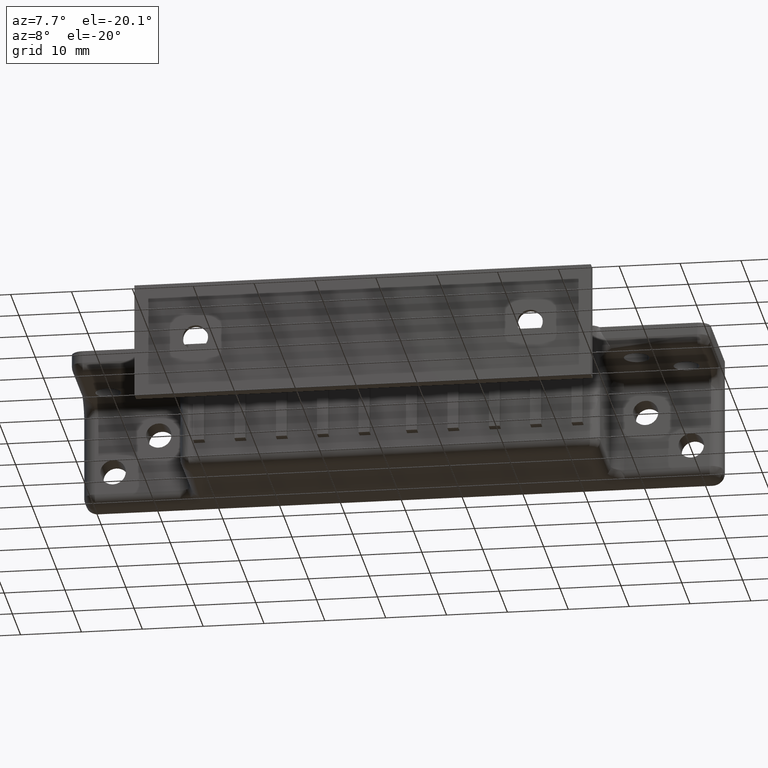
[diagram: clean part render]
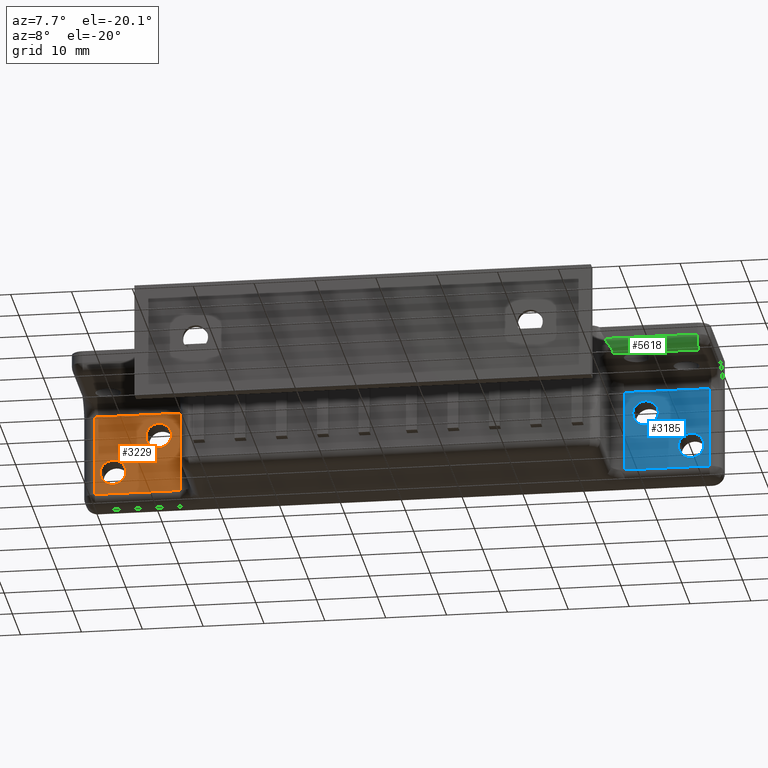
[diagram: same view with three faces highlighted in distinct colors, each labeled with its STEP entity id]
A machine part, auxiliary view with three faces highlighted in distinct colors.
Their STEP definitions:

[orange] entity #3229 — the highlighted face is a freeform B-spline surface patch.
#782=CARTESIAN_POINT('',(-45.400000000000013,-3.999999999999895,-5.000000056137732));
#783=VERTEX_POINT('',#782);
#784=CARTESIAN_POINT('',(-45.927192888655163,-3.999999999999601,-3.608498030159591));
#785=VERTEX_POINT('',#784);
#786=CARTESIAN_POINT('',(-45.400000000000013,-3.999999999999895,-5.000000056137732));
#787=CARTESIAN_POINT('',(-45.399554015009372,-3.999999999999836,-4.698870299670682));
#788=CARTESIAN_POINT('',(-45.511041634825993,-3.999999999999715,-4.192294069814452));
#789=CARTESIAN_POINT('',(-45.790654336704378,-3.999999999999643,-3.762719706654812));
#790=CARTESIAN_POINT('',(-45.927192888655163,-3.999999999999601,-3.608498030159591));
#791=B_SPLINE_CURVE_WITH_KNOTS('',3,(#786,#787,#788,#789,#790),.UNSPECIFIED.,.F.,.U.,(4,1,4),(0.000000047316011,0.903135405796648,1.521086794671027),.UNSPECIFIED.);
#792=EDGE_CURVE('',#783,#785,#791,.T.);
#835=CARTESIAN_POINT('',(-49.072807111344837,-3.999999999999601,-6.391501969757768));
#836=VERTEX_POINT('',#835);
#842=CARTESIAN_POINT('',(-47.500000000000000,-3.999999999999895,-7.099999999958679));
#843=VERTEX_POINT('',#842);
#844=CARTESIAN_POINT('',(-49.072807111344837,-3.999999999999601,-6.391501969757768));
#845=CARTESIAN_POINT('',(-48.888961545182759,-3.999999999999643,-6.599796544172691));
#846=CARTESIAN_POINT('',(-48.572580421874768,-3.999999999999689,-6.838721687287753));
#847=CARTESIAN_POINT('',(-48.018419081385602,-3.999999999999801,-7.053817166919189));
#848=CARTESIAN_POINT('',(-47.703699936760792,-3.999999999999857,-7.100082834436542));
#849=CARTESIAN_POINT('',(-47.500000000000000,-3.999999999999895,-7.099999999958679));
#850=B_SPLINE_CURVE_WITH_KNOTS('',3,(#844,#845,#846,#847,#848,#849),.UNSPECIFIED.,.F.,.U.,(4,1,1,4),(0.000000053171088,0.833292452879776,1.166587016798466,1.777669814291842),.UNSPECIFIED.);
#851=EDGE_CURVE('',#836,#843,#850,.T.);
#853=CARTESIAN_POINT('',(-47.500000000000000,-3.999999999999895,-7.099999999958679));
#854=CARTESIAN_POINT('',(-47.225084974774710,-3.999999999999893,-7.100274448361832));
#855=CARTESIAN_POINT('',(-46.727001550256723,-3.999999999999893,-7.000768992620934));
#856=CARTESIAN_POINT('',(-46.134536210673431,-3.999999999999904,-6.635569629672772));
#857=CARTESIAN_POINT('',(-45.709523724380468,-3.999999999999886,-6.155016870116034));
#858=CARTESIAN_POINT('',(-45.455971939371167,-3.999999999999908,-5.601325243068589));
#859=CARTESIAN_POINT('',(-45.399954099206582,-3.999999999999870,-5.188986243046675));
#860=CARTESIAN_POINT('',(-45.400000000000013,-3.999999999999895,-5.000000056137732));
#861=B_SPLINE_CURVE_WITH_KNOTS('',3,(#853,#854,#855,#856,#857,#858,#859,#860),.UNSPECIFIED.,.F.,.U.,(4,1,1,1,1,4),(0.000000181138403,0.824690623533419,1.494784162827745,2.061698216374982,2.731782773978693,3.298755031449686),.UNSPECIFIED.);
#862=EDGE_CURVE('',#843,#783,#861,.T.);
#885=CARTESIAN_POINT('',(-47.500000000000000,-3.999999999999895,-2.899999999958680));
#886=VERTEX_POINT('',#885);
#887=CARTESIAN_POINT('',(-45.927192888655163,-3.999999999999601,-3.608498030159591));
#888=CARTESIAN_POINT('',(-46.037593609527420,-3.999999999999623,-3.483655693986616));
#889=CARTESIAN_POINT('',(-46.274407352123603,-3.999999999999665,-3.272908937221512));
#890=CARTESIAN_POINT('',(-46.796562052147152,-3.999999999999761,-2.985786505767793));
#891=CARTESIAN_POINT('',(-47.222182961258333,-3.999999999999843,-2.899675884934878));
#892=CARTESIAN_POINT('',(-47.500000000000000,-3.999999999999895,-2.899999999958680));
#893=B_SPLINE_CURVE_WITH_KNOTS('',3,(#887,#888,#889,#890,#891,#892),.UNSPECIFIED.,.F.,.U.,(4,1,1,4),(0.000000053172585,0.499970711671737,0.944377414584489,1.777669814291842),.UNSPECIFIED.);
#894=EDGE_CURVE('',#785,#886,#893,.T.);
#896=CARTESIAN_POINT('',(-49.600000000000009,-3.999999999999895,-4.999999943779620));
#897=VERTEX_POINT('',#896);
#898=CARTESIAN_POINT('',(-47.500000000000000,-3.999999999999895,-2.899999999958680));
#899=CARTESIAN_POINT('',(-47.723363547043768,-3.999999999999895,-2.899889480158138));
#900=CARTESIAN_POINT('',(-48.066890773648673,-3.999999999999901,-2.955345869023069));
#901=CARTESIAN_POINT('',(-48.526529187907720,-3.999999999999897,-3.152422927920235));
#902=CARTESIAN_POINT('',(-48.911394445788041,-3.999999999999866,-3.416419601125118));
#903=CARTESIAN_POINT('',(-49.267455108142428,-3.999999999999925,-3.819025379851884));
#904=CARTESIAN_POINT('',(-49.533577360458757,-3.999999999999909,-4.364391221345167));
#905=CARTESIAN_POINT('',(-49.600126413254138,-3.999999999999880,-4.776637098725781));
#906=CARTESIAN_POINT('',(-49.600000000000009,-3.999999999999895,-4.999999943779620));
#907=B_SPLINE_CURVE_WITH_KNOTS('',3,(#898,#899,#900,#901,#902,#903,#904,#905,#906),.UNSPECIFIED.,.F.,.U.,(4,1,1,1,1,1,4),(0.000000181137159,0.670056274260765,1.030865980929571,1.494784162827211,2.061698216374646,2.628704581179784,3.298755031449605),.UNSPECIFIED.);
#908=EDGE_CURVE('',#886,#897,#907,.T.);
#910=CARTESIAN_POINT('',(-49.600000000000009,-3.999999999999895,-4.999999943779620));
#911=CARTESIAN_POINT('',(-49.600075927262161,-3.999999999999855,-5.205980713609296));
#912=CARTESIAN_POINT('',(-49.524829175136432,-3.999999999999734,-5.712979807977589));
#913=CARTESIAN_POINT('',(-49.272689918193237,-3.999999999999658,-6.166273092626057));
#914=CARTESIAN_POINT('',(-49.072807111344837,-3.999999999999601,-6.391501969757768));
#915=B_SPLINE_CURVE_WITH_KNOTS('',3,(#910,#911,#912,#913,#914),.UNSPECIFIED.,.F.,.U.,(4,1,4),(0.000000047316089,0.617951436193237,1.521086794671041),.UNSPECIFIED.);
#916=EDGE_CURVE('',#897,#836,#915,.T.);
#974=CARTESIAN_POINT('',(-37.900000000000013,-3.999999999999895,0.999999943862273));
#975=VERTEX_POINT('',#974);
#976=CARTESIAN_POINT('',(-38.427192888655163,-3.999999999999601,2.391501969840413));
#977=VERTEX_POINT('',#976);
#978=CARTESIAN_POINT('',(-37.900000000000013,-3.999999999999895,0.999999943862273));
#979=CARTESIAN_POINT('',(-37.899852959080803,-3.999999999999857,1.237688144291076));
#980=CARTESIAN_POINT('',(-37.987030437386018,-3.999999999999713,1.744582385124396));
#981=CARTESIAN_POINT('',(-38.248483804007762,-3.999999999999657,2.189926416583971));
#982=CARTESIAN_POINT('',(-38.427192888655163,-3.999999999999601,2.391501969840413));
#983=B_SPLINE_CURVE_WITH_KNOTS('',3,(#978,#979,#980,#981,#982),.UNSPECIFIED.,.F.,.U.,(4,1,4),(0.000000047316203,0.713023929276209,1.521086794671025),.UNSPECIFIED.);
#984=EDGE_CURVE('',#975,#977,#983,.T.);
#1029=CARTESIAN_POINT('',(-41.572807111344837,-3.999999999999601,-0.391501969757764));
#1030=VERTEX_POINT('',#1029);
#1036=CARTESIAN_POINT('',(-40.0,-3.999999999999895,-1.099999999958676));
#1037=VERTEX_POINT('',#1036);
#1038=CARTESIAN_POINT('',(-41.572807111344837,-3.999999999999601,-0.391501969757764));
#1039=CARTESIAN_POINT('',(-41.388961898552687,-3.999999999999636,-0.599788875593447));
#1040=CARTESIAN_POINT('',(-41.042446050334533,-3.999999999999707,-0.861504251690805));
#1041=CARTESIAN_POINT('',(-40.481411079647977,-3.999999999999801,-1.062316386851195));
#1042=CARTESIAN_POINT('',(-40.166657030213237,-3.999999999999872,-1.100040475445964));
#1043=CARTESIAN_POINT('',(-40.0,-3.999999999999895,-1.099999999958676));
#1044=B_SPLINE_CURVE_WITH_KNOTS('',3,(#1038,#1039,#1040,#1041,#1042,#1043),.UNSPECIFIED.,.F.,.U.,(4,1,1,4),(0.000000053172877,0.833292452880401,1.277699155790871,1.777669814291842),.UNSPECIFIED.);
#1045=EDGE_CURVE('',#1030,#1037,#1044,.T.);
#1047=CARTESIAN_POINT('',(-40.0,-3.999999999999895,-1.099999999958676));
#1048=CARTESIAN_POINT('',(-39.759448854636538,-3.999999999999897,-1.100154484132080));
#1049=CARTESIAN_POINT('',(-39.364413318616641,-3.999999999999899,-1.031341710723601));
#1050=CARTESIAN_POINT('',(-38.805152649942890,-3.999999999999891,-0.758391059061153));
#1051=CARTESIAN_POINT('',(-38.401050069262112,-3.999999999999897,-0.401158621784563));
#1052=CARTESIAN_POINT('',(-38.118362279962732,-3.999999999999901,0.033623499598106));
#1053=CARTESIAN_POINT('',(-37.944376102769873,-3.999999999999896,0.484608276528699));
#1054=CARTESIAN_POINT('',(-37.899936007373327,-3.999999999999897,0.811007954297067));
#1055=CARTESIAN_POINT('',(-37.900000000000013,-3.999999999999895,0.999999943862273));
#1056=B_SPLINE_CURVE_WITH_KNOTS('',3,(#1047,#1048,#1049,#1050,#1051,#1052,#1053,#1054,#1055),.UNSPECIFIED.,.F.,.U.,(4,1,1,1,1,1,4),(0.000000181141028,0.721603617523578,1.185510774206833,1.855520375933963,2.319428157187720,2.731782773979452,3.298755031449599),.UNSPECIFIED.);
#1057=EDGE_CURVE('',#1037,#975,#1056,.T.);
#1080=CARTESIAN_POINT('',(-40.0,-3.999999999999895,3.100000000041324));
#1081=VERTEX_POINT('',#1080);
#1082=CARTESIAN_POINT('',(-38.427192888655163,-3.999999999999601,2.391501969840413));
#1083=CARTESIAN_POINT('',(-38.537593623293652,-3.999999999999607,2.516344361526416));
#1084=CARTESIAN_POINT('',(-38.774407225274942,-3.999999999999684,2.727090997562583));
#1085=CARTESIAN_POINT('',(-39.296562347973300,-3.999999999999757,3.014213465888780));
#1086=CARTESIAN_POINT('',(-39.722182636775798,-3.999999999999844,3.100324181202301));
#1087=CARTESIAN_POINT('',(-40.0,-3.999999999999895,3.100000000041324));
#1088=B_SPLINE_CURVE_WITH_KNOTS('',3,(#1082,#1083,#1084,#1085,#1086,#1087),.UNSPECIFIED.,.F.,.U.,(4,1,1,4),(0.000000053172594,0.499970711671741,0.944377414584484,1.777669814291842),.UNSPECIFIED.);
#1089=EDGE_CURVE('',#977,#1081,#1088,.T.);
#1091=CARTESIAN_POINT('',(-42.100000000000001,-3.999999999999895,1.000000056220385));
#1092=VERTEX_POINT('',#1091);
#1093=CARTESIAN_POINT('',(-40.0,-3.999999999999895,3.100000000041324));
#1094=CARTESIAN_POINT('',(-40.309328375430063,-3.999999999999889,3.100432620259229));
#1095=CARTESIAN_POINT('',(-40.807184487013927,-3.999999999999916,2.987918592913792));
#1096=CARTESIAN_POINT('',(-41.330260158202940,-3.999999999999875,2.647340985195380));
#1097=CARTESIAN_POINT('',(-41.679536051725051,-3.999999999999903,2.289453232614917));
#1098=CARTESIAN_POINT('',(-41.997924028854712,-3.999999999999886,1.772867848066403));
#1099=CARTESIAN_POINT('',(-42.100394817058877,-3.999999999999898,1.292142221916823));
#1100=CARTESIAN_POINT('',(-42.100000000000001,-3.999999999999895,1.000000056220385));
#1101=B_SPLINE_CURVE_WITH_KNOTS('',3,(#1093,#1094,#1095,#1096,#1097,#1098,#1099,#1100),.UNSPECIFIED.,.F.,.U.,(4,1,1,1,1,4),(0.000000181137360,0.927781601232995,1.494784162827209,1.855520375931953,2.422521843111042,3.298755031449600),.UNSPECIFIED.);
#1102=EDGE_CURVE('',#1081,#1092,#1101,.T.);
#1104=CARTESIAN_POINT('',(-42.100000000000001,-3.999999999999895,1.000000056220385));
#1105=CARTESIAN_POINT('',(-42.100449167360857,-3.999999999999838,0.698869633092733));
#1106=CARTESIAN_POINT('',(-41.988951196694238,-3.999999999999716,0.192296098438409));
#1107=CARTESIAN_POINT('',(-41.709349619100379,-3.999999999999641,-0.237281351083020));
#1108=CARTESIAN_POINT('',(-41.572807111344837,-3.999999999999601,-0.391501969757764));
#1109=B_SPLINE_CURVE_WITH_KNOTS('',3,(#1104,#1105,#1106,#1107,#1108),.UNSPECIFIED.,.F.,.U.,(4,1,4),(0.000000047315879,0.903135405796669,1.521086794671053),.UNSPECIFIED.);
#1110=EDGE_CURVE('',#1092,#1030,#1109,.T.);
#2958=CARTESIAN_POINT('',(-36.500000000000000,-3.999999999999915,4.700000000041200));
#2959=VERTEX_POINT('',#2958);
#2960=CARTESIAN_POINT('',(-50.500000000325201,-3.999999999999915,4.700000000041200));
#2961=VERTEX_POINT('',#2960);
#2962=CARTESIAN_POINT('',(-36.500000000000000,-3.999999999999915,4.700000000041200));
#2963=CARTESIAN_POINT('',(-50.500000000325201,-3.999999999999915,4.700000000041200));
#2964=QUASI_UNIFORM_CURVE('',1,(#2962,#2963),.UNSPECIFIED.,.F.,.U.);
#2965=EDGE_CURVE('',#2959,#2961,#2964,.T.);
#3186=CARTESIAN_POINT('',(-51.199299973206728,-3.999999999999915,-9.369329973986979));
#3187=CARTESIAN_POINT('',(-35.800699651609207,-3.999999999999915,-9.369329973986979));
#3188=CARTESIAN_POINT('',(-51.199299973206728,-3.999999999999915,5.369330333485405));
#3189=CARTESIAN_POINT('',(-35.800699651609207,-3.999999999999915,5.369330333485405));
#3190=B_SPLINE_SURFACE_WITH_KNOTS('',1,1,((#3186,#3188),(#3187,#3189)),.UNSPECIFIED.,.F.,.F.,.U.,(2,2),(2,2),(0.0,15.398600321597520),(0.0,14.738660307472379),.UNSPECIFIED.);
#3191=ORIENTED_EDGE('',*,*,#2965,.T.);
#3192=CARTESIAN_POINT('',(-50.500000000324803,-3.999999999999915,-8.699999999958781));
#3193=VERTEX_POINT('',#3192);
#3194=CARTESIAN_POINT('',(-50.500000000325201,-3.999999999999915,4.700000000041200));
#3195=CARTESIAN_POINT('',(-50.500000000324803,-3.999999999999915,-8.699999999958781));
#3196=QUASI_UNIFORM_CURVE('',1,(#3194,#3195),.UNSPECIFIED.,.F.,.U.);
#3197=EDGE_CURVE('',#2961,#3193,#3196,.T.);
#3198=ORIENTED_EDGE('',*,*,#3197,.T.);
#3199=CARTESIAN_POINT('',(-36.500000000000000,-3.999999999999915,-8.699999999958781));
#3200=VERTEX_POINT('',#3199);
#3201=CARTESIAN_POINT('',(-50.500000000324803,-3.999999999999915,-8.699999999958781));
#3202=CARTESIAN_POINT('',(-36.500000000000000,-3.999999999999915,-8.699999999958781));
#3203=QUASI_UNIFORM_CURVE('',1,(#3201,#3202),.UNSPECIFIED.,.F.,.U.);
#3204=EDGE_CURVE('',#3193,#3200,#3203,.T.);
#3205=ORIENTED_EDGE('',*,*,#3204,.T.);
#3206=CARTESIAN_POINT('',(-36.500000000000000,-3.999999999999915,-8.699999999958781));
#3207=CARTESIAN_POINT('',(-36.500000000000000,-3.999999999999915,4.700000000041200));
#3208=QUASI_UNIFORM_CURVE('',1,(#3206,#3207),.UNSPECIFIED.,.F.,.U.);
#3209=EDGE_CURVE('',#3200,#2959,#3208,.T.);
#3210=ORIENTED_EDGE('',*,*,#3209,.T.);
#3211=EDGE_LOOP('',(#3191,#3198,#3205,#3210));
#3212=FACE_OUTER_BOUND('',#3211,.T.);
#3213=ORIENTED_EDGE('',*,*,#1102,.F.);
#3214=ORIENTED_EDGE('',*,*,#1089,.F.);
#3215=ORIENTED_EDGE('',*,*,#984,.F.);
#3216=ORIENTED_EDGE('',*,*,#1057,.F.);
#3217=ORIENTED_EDGE('',*,*,#1045,.F.);
#3218=ORIENTED_EDGE('',*,*,#1110,.F.);
#3219=EDGE_LOOP('',(#3213,#3214,#3215,#3216,#3217,#3218));
#3220=FACE_BOUND('',#3219,.T.);
#3221=ORIENTED_EDGE('',*,*,#908,.F.);
#3222=ORIENTED_EDGE('',*,*,#894,.F.);
#3223=ORIENTED_EDGE('',*,*,#792,.F.);
#3224=ORIENTED_EDGE('',*,*,#862,.F.);
#3225=ORIENTED_EDGE('',*,*,#851,.F.);
#3226=ORIENTED_EDGE('',*,*,#916,.F.);
#3227=EDGE_LOOP('',(#3221,#3222,#3223,#3224,#3225,#3226));
#3228=FACE_BOUND('',#3227,.T.);
#3229=ADVANCED_FACE('',(#3212,#3220,#3228),#3190,.T.);

[blue] entity #3185 — the highlighted face is a freeform B-spline surface patch.
#1167=CARTESIAN_POINT('',(42.100000000000001,-3.999999999999895,0.999999943862272));
#1168=VERTEX_POINT('',#1167);
#1169=CARTESIAN_POINT('',(41.572807111344837,-3.999999999999601,2.391501969840413));
#1170=VERTEX_POINT('',#1169);
#1171=CARTESIAN_POINT('',(42.100000000000001,-3.999999999999895,0.999999943862272));
#1172=CARTESIAN_POINT('',(42.100459129347250,-3.999999999999836,1.301131636916525));
#1173=CARTESIAN_POINT('',(41.988945362593270,-3.999999999999724,1.807702217579748));
#1174=CARTESIAN_POINT('',(41.709350094343982,-3.999999999999634,2.237282253103238));
#1175=CARTESIAN_POINT('',(41.572807111344837,-3.999999999999601,2.391501969840413));
#1176=B_SPLINE_CURVE_WITH_KNOTS('',3,(#1171,#1172,#1173,#1174,#1175),.UNSPECIFIED.,.F.,.U.,(4,1,4),(0.000000047315838,0.903135405796685,1.521086794671031),.UNSPECIFIED.);
#1177=EDGE_CURVE('',#1168,#1170,#1176,.T.);
#1221=CARTESIAN_POINT('',(38.427192888655163,-3.999999999999601,-0.391501969757762));
#1222=VERTEX_POINT('',#1221);
#1228=CARTESIAN_POINT('',(40.0,-3.999999999999895,-1.099999999958676));
#1229=VERTEX_POINT('',#1228);
#1230=CARTESIAN_POINT('',(38.427192888655163,-3.999999999999601,-0.391501969757762));
#1231=CARTESIAN_POINT('',(38.537595094610850,-3.999999999999623,-0.516345832261079));
#1232=CARTESIAN_POINT('',(38.774406779413972,-3.999999999999665,-0.727089874325309));
#1233=CARTESIAN_POINT('',(39.296561994707801,-3.999999999999765,-1.014214313266866));
#1234=CARTESIAN_POINT('',(39.722183607535719,-3.999999999999836,-1.100323738710818));
#1235=CARTESIAN_POINT('',(40.0,-3.999999999999895,-1.099999999958676));
#1236=B_SPLINE_CURVE_WITH_KNOTS('',3,(#1230,#1231,#1232,#1233,#1234,#1235),.UNSPECIFIED.,.F.,.U.,(4,1,1,4),(0.000000053171422,0.499970711671231,0.944377414584374,1.777669814291843),.UNSPECIFIED.);
#1237=EDGE_CURVE('',#1222,#1229,#1236,.T.);
#1239=CARTESIAN_POINT('',(40.0,-3.999999999999895,-1.099999999958676));
#1240=CARTESIAN_POINT('',(40.274918207606277,-3.999999999999896,-1.100278282616277));
#1241=CARTESIAN_POINT('',(40.772990420738857,-3.999999999999896,-1.000758615283857));
#1242=CARTESIAN_POINT('',(41.335848139192017,-3.999999999999890,-0.653833688318817));
#1243=CARTESIAN_POINT('',(41.747639627876282,-3.999999999999895,-0.210541978678698));
#1244=CARTESIAN_POINT('',(42.028116577949291,-3.999999999999910,0.329988520288701));
#1245=CARTESIAN_POINT('',(42.100099246197587,-3.999999999999882,0.776649368072438));
#1246=CARTESIAN_POINT('',(42.100000000000001,-3.999999999999895,0.999999943862272));
#1247=B_SPLINE_CURVE_WITH_KNOTS('',3,(#1239,#1240,#1241,#1242,#1243,#1244,#1245,#1246),.UNSPECIFIED.,.F.,.U.,(4,1,1,1,1,4),(0.000000181138356,0.824690623533324,1.494784162827602,1.958628687313999,2.628704581179898,3.298755031449604),.UNSPECIFIED.);
#1248=EDGE_CURVE('',#1229,#1168,#1247,.T.);
#1271=CARTESIAN_POINT('',(40.0,-3.999999999999895,3.100000000041324));
#1272=VERTEX_POINT('',#1271);
#1273=CARTESIAN_POINT('',(41.572807111344837,-3.999999999999601,2.391501969840413));
#1274=CARTESIAN_POINT('',(41.462406325873808,-3.999999999999625,2.516344428163845));
#1275=CARTESIAN_POINT('',(41.225592793979338,-3.999999999999660,2.727090696463732));
#1276=CARTESIAN_POINT('',(40.703437815271542,-3.999999999999777,3.014214126249236));
#1277=CARTESIAN_POINT('',(40.277817207156417,-3.999999999999830,3.100323223649369));
#1278=CARTESIAN_POINT('',(40.0,-3.999999999999895,3.100000000041324));
#1279=B_SPLINE_CURVE_WITH_KNOTS('',3,(#1273,#1274,#1275,#1276,#1277,#1278),.UNSPECIFIED.,.F.,.U.,(4,1,1,4),(0.000000053170120,0.499970711670288,0.944377414583833,1.777669814291843),.UNSPECIFIED.);
#1280=EDGE_CURVE('',#1170,#1272,#1279,.T.);
#1282=CARTESIAN_POINT('',(37.900000000000013,-3.999999999999895,1.000000056220386));
#1283=VERTEX_POINT('',#1282);
#1284=CARTESIAN_POINT('',(40.0,-3.999999999999895,3.100000000041324));
#1285=CARTESIAN_POINT('',(39.776641795861650,-3.999999999999894,3.100098387464835));
#1286=CARTESIAN_POINT('',(39.347209813635452,-3.999999999999897,3.030839744241810));
#1287=CARTESIAN_POINT('',(38.726553408444971,-3.999999999999899,2.718603194615349));
#1288=CARTESIAN_POINT('',(38.287306776330993,-3.999999999999890,2.268405644550327));
#1289=CARTESIAN_POINT('',(37.976920329199842,-3.999999999999916,1.669892711656847));
#1290=CARTESIAN_POINT('',(37.899770786411047,-3.999999999999877,1.257744807651406));
#1291=CARTESIAN_POINT('',(37.900000000000013,-3.999999999999895,1.000000056220386));
#1292=B_SPLINE_CURVE_WITH_KNOTS('',3,(#1284,#1285,#1286,#1287,#1288,#1289,#1290,#1291),.UNSPECIFIED.,.F.,.U.,(4,1,1,1,1,4),(0.000000181146579,0.670056274268448,1.288584627144314,2.061698216378256,2.525610895242569,3.298755031449526),.UNSPECIFIED.);
#1293=EDGE_CURVE('',#1272,#1283,#1292,.T.);
#1295=CARTESIAN_POINT('',(37.900000000000013,-3.999999999999895,1.000000056220386));
#1296=CARTESIAN_POINT('',(37.899929116704733,-3.999999999999855,0.794021628673818));
#1297=CARTESIAN_POINT('',(37.975155979933199,-3.999999999999747,0.287012668613327));
#1298=CARTESIAN_POINT('',(38.227324272264013,-3.999999999999648,-0.166264857879170));
#1299=CARTESIAN_POINT('',(38.427192888655163,-3.999999999999601,-0.391501969757762));
#1300=B_SPLINE_CURVE_WITH_KNOTS('',3,(#1295,#1296,#1297,#1298,#1299),.UNSPECIFIED.,.F.,.U.,(4,1,4),(0.000000047316048,0.617951436193311,1.521086794671036),.UNSPECIFIED.);
#1301=EDGE_CURVE('',#1283,#1222,#1300,.T.);
#1359=CARTESIAN_POINT('',(49.599999999999987,-3.999999999999895,-5.000000056137730));
#1360=VERTEX_POINT('',#1359);
#1361=CARTESIAN_POINT('',(49.072807111344837,-3.999999999999601,-3.608498030159591));
#1362=VERTEX_POINT('',#1361);
#1363=CARTESIAN_POINT('',(49.599999999999987,-3.999999999999895,-5.000000056137730));
#1364=CARTESIAN_POINT('',(49.600459186358727,-3.999999999999842,-4.698869218411352));
#1365=CARTESIAN_POINT('',(49.488945564038289,-3.999999999999701,-4.192296550809356));
#1366=CARTESIAN_POINT('',(49.209349934566752,-3.999999999999651,-3.762718432620269));
#1367=CARTESIAN_POINT('',(49.072807111344837,-3.999999999999601,-3.608498030159591));
#1368=B_SPLINE_CURVE_WITH_KNOTS('',3,(#1363,#1364,#1365,#1366,#1367),.UNSPECIFIED.,.F.,.U.,(4,1,4),(0.000000047315871,0.903135405796581,1.521086794671017),.UNSPECIFIED.);
#1369=EDGE_CURVE('',#1360,#1362,#1368,.T.);
#1413=CARTESIAN_POINT('',(45.927192888655163,-3.999999999999601,-6.391501969757766));
#1414=VERTEX_POINT('',#1413);
#1420=CARTESIAN_POINT('',(47.500000000000000,-3.999999999999895,-7.099999999958679));
#1421=VERTEX_POINT('',#1420);
#1422=CARTESIAN_POINT('',(45.927192888655163,-3.999999999999601,-6.391501969757766));
#1423=CARTESIAN_POINT('',(46.037593584597417,-3.999999999999611,-6.516344298466718));
#1424=CARTESIAN_POINT('',(46.274407395318761,-3.999999999999685,-6.727091260932248));
#1425=CARTESIAN_POINT('',(46.796561994477749,-3.999999999999738,-7.014212903132441));
#1426=CARTESIAN_POINT('',(47.222182853933013,-3.999999999999871,-7.100324913116915));
#1427=CARTESIAN_POINT('',(47.500000000000000,-3.999999999999895,-7.099999999958679));
#1428=B_SPLINE_CURVE_WITH_KNOTS('',3,(#1422,#1423,#1424,#1425,#1426,#1427),.UNSPECIFIED.,.F.,.U.,(4,1,1,4),(0.000000053170630,0.499970711670527,0.944377414583945,1.777669814291843),.UNSPECIFIED.);
#1429=EDGE_CURVE('',#1414,#1421,#1428,.T.);
#1431=CARTESIAN_POINT('',(47.500000000000000,-3.999999999999895,-7.099999999958679));
#1432=CARTESIAN_POINT('',(47.740557153621531,-3.999999999999890,-7.100178466115497));
#1433=CARTESIAN_POINT('',(48.135582537593983,-3.999999999999904,-7.031319993480535));
#1434=CARTESIAN_POINT('',(48.648213060165098,-3.999999999999892,-6.781106756889433));
#1435=CARTESIAN_POINT('',(48.996104518701692,-3.999999999999893,-6.495595212879481));
#1436=CARTESIAN_POINT('',(49.276242063337030,-3.999999999999897,-6.145540150090236));
#1437=CARTESIAN_POINT('',(49.523100689909150,-3.999999999999895,-5.669913168485361));
#1438=CARTESIAN_POINT('',(49.600230850374452,-3.999999999999895,-5.257744623795642));
#1439=CARTESIAN_POINT('',(49.599999999999987,-3.999999999999895,-5.000000056137730));
#1440=B_SPLINE_CURVE_WITH_KNOTS('',3,(#1431,#1432,#1433,#1434,#1435,#1436,#1437,#1438,#1439),.UNSPECIFIED.,.F.,.U.,(4,1,1,1,1,1,4),(0.000000181130695,0.721603617515594,1.185510774200266,1.700896312035776,2.061698216372517,2.525610895239085,3.298755031449690),.UNSPECIFIED.);
#1441=EDGE_CURVE('',#1421,#1360,#1440,.T.);
#1464=CARTESIAN_POINT('',(47.500000000000000,-3.999999999999895,-2.899999999958680));
#1465=VERTEX_POINT('',#1464);
#1466=CARTESIAN_POINT('',(49.072807111344837,-3.999999999999601,-3.608498030159591));
#1467=CARTESIAN_POINT('',(48.962406097082088,-3.999999999999618,-3.483655484773337));
#1468=CARTESIAN_POINT('',(48.725592389583831,-3.999999999999671,-3.272909000955588));
#1469=CARTESIAN_POINT('',(48.203438638835649,-3.999999999999763,-2.985786912810768));
#1470=CARTESIAN_POINT('',(47.777815925219798,-3.999999999999842,-2.899675117297488));
#1471=CARTESIAN_POINT('',(47.500000000000000,-3.999999999999895,-2.899999999958680));
#1472=B_SPLINE_CURVE_WITH_KNOTS('',3,(#1466,#1467,#1468,#1469,#1470,#1471),.UNSPECIFIED.,.F.,.U.,(4,1,1,4),(0.000000053170434,0.499970711670482,0.944377414583947,1.777669814291842),.UNSPECIFIED.);
#1473=EDGE_CURVE('',#1362,#1465,#1472,.T.);
#1475=CARTESIAN_POINT('',(45.400000000000013,-3.999999999999895,-4.999999943779620));
#1476=VERTEX_POINT('',#1475);
#1477=CARTESIAN_POINT('',(47.500000000000000,-3.999999999999895,-2.899999999958680));
#1478=CARTESIAN_POINT('',(47.311014986600078,-3.999999999999906,-2.899945267418806));
#1479=CARTESIAN_POINT('',(46.915867796693313,-3.999999999999874,-2.953661349908281));
#1480=CARTESIAN_POINT('',(46.391910296180363,-3.999999999999911,-3.185887821801686));
#1481=CARTESIAN_POINT('',(46.003892715756301,-3.999999999999878,-3.504410478968439));
#1482=CARTESIAN_POINT('',(45.745329951858842,-3.999999999999919,-3.827539301763120));
#1483=CARTESIAN_POINT('',(45.487437334800262,-3.999999999999867,-4.295834179925341));
#1484=CARTESIAN_POINT('',(45.399608755801218,-3.999999999999908,-4.707846987888042));
#1485=CARTESIAN_POINT('',(45.400000000000013,-3.999999999999895,-4.999999943779620));
#1486=B_SPLINE_CURVE_WITH_KNOTS('',3,(#1477,#1478,#1479,#1480,#1481,#1482,#1483,#1484,#1485),.UNSPECIFIED.,.F.,.U.,(4,1,1,1,1,1,4),(0.000000181143313,0.566959838508009,1.185510774207853,1.700896312041430,2.061698216376774,2.422521843112440,3.298755031449587),.UNSPECIFIED.);
#1487=EDGE_CURVE('',#1465,#1476,#1486,.T.);
#1489=CARTESIAN_POINT('',(45.400000000000013,-3.999999999999895,-4.999999943779620));
#1490=CARTESIAN_POINT('',(45.399863550457532,-3.999999999999844,-5.237687748004027));
#1491=CARTESIAN_POINT('',(45.487013883440817,-3.999999999999740,-5.744583669423399));
#1492=CARTESIAN_POINT('',(45.748489077163534,-3.999999999999645,-6.189926483596576));
#1493=CARTESIAN_POINT('',(45.927192888655163,-3.999999999999601,-6.391501969757766));
#1494=B_SPLINE_CURVE_WITH_KNOTS('',3,(#1489,#1490,#1491,#1492,#1493),.UNSPECIFIED.,.F.,.U.,(4,1,4),(0.000000047315573,0.713023929276067,1.521086794671033),.UNSPECIFIED.);
#1495=EDGE_CURVE('',#1476,#1414,#1494,.T.);
#3017=CARTESIAN_POINT('',(36.500000000000000,-3.999999999999915,4.700000000041200));
#3018=VERTEX_POINT('',#3017);
#3019=CARTESIAN_POINT('',(36.500000000000000,-3.999999999999915,-8.699999999958781));
#3020=VERTEX_POINT('',#3019);
#3021=CARTESIAN_POINT('',(36.500000000000000,-3.999999999999915,4.700000000041200));
#3022=CARTESIAN_POINT('',(36.500000000000000,-3.999999999999915,-8.699999999958781));
#3023=QUASI_UNIFORM_CURVE('',1,(#3021,#3022),.UNSPECIFIED.,.F.,.U.);
#3024=EDGE_CURVE('',#3018,#3020,#3023,.T.);
#3142=CARTESIAN_POINT('',(35.800700027150938,-3.999999999999915,-9.369329973986980));
#3143=CARTESIAN_POINT('',(51.199300348033532,-3.999999999999915,-9.369329973986980));
#3144=CARTESIAN_POINT('',(35.800700027150938,-3.999999999999915,5.369330333485407));
#3145=CARTESIAN_POINT('',(51.199300348033532,-3.999999999999915,5.369330333485407));
#3146=B_SPLINE_SURFACE_WITH_KNOTS('',1,1,((#3142,#3144),(#3143,#3145)),.UNSPECIFIED.,.F.,.F.,.U.,(2,2),(2,2),(0.0,15.398600320882601),(0.0,14.738660307472390),.UNSPECIFIED.);
#3147=CARTESIAN_POINT('',(50.499999999675197,-3.999999999999915,-8.699999999958781));
#3148=VERTEX_POINT('',#3147);
#3149=CARTESIAN_POINT('',(50.499999999674813,-3.999999999999915,4.700000000041200));
#3150=VERTEX_POINT('',#3149);
#3151=CARTESIAN_POINT('',(50.499999999675197,-3.999999999999915,-8.699999999958781));
#3152=CARTESIAN_POINT('',(50.499999999674813,-3.999999999999915,4.700000000041200));
#3153=QUASI_UNIFORM_CURVE('',1,(#3151,#3152),.UNSPECIFIED.,.F.,.U.);
#3154=EDGE_CURVE('',#3148,#3150,#3153,.T.);
#3155=ORIENTED_EDGE('',*,*,#3154,.T.);
#3156=CARTESIAN_POINT('',(50.499999999674813,-3.999999999999915,4.700000000041200));
#3157=CARTESIAN_POINT('',(36.500000000000000,-3.999999999999915,4.700000000041200));
#3158=QUASI_UNIFORM_CURVE('',1,(#3156,#3157),.UNSPECIFIED.,.F.,.U.);
#3159=EDGE_CURVE('',#3150,#3018,#3158,.T.);
#3160=ORIENTED_EDGE('',*,*,#3159,.T.);
#3161=ORIENTED_EDGE('',*,*,#3024,.T.);
#3162=CARTESIAN_POINT('',(36.500000000000000,-3.999999999999915,-8.699999999958781));
#3163=CARTESIAN_POINT('',(50.499999999675197,-3.999999999999915,-8.699999999958781));
#3164=QUASI_UNIFORM_CURVE('',1,(#3162,#3163),.UNSPECIFIED.,.F.,.U.);
#3165=EDGE_CURVE('',#3020,#3148,#3164,.T.);
#3166=ORIENTED_EDGE('',*,*,#3165,.T.);
#3167=EDGE_LOOP('',(#3155,#3160,#3161,#3166));
#3168=FACE_OUTER_BOUND('',#3167,.T.);
#3169=ORIENTED_EDGE('',*,*,#1487,.F.);
#3170=ORIENTED_EDGE('',*,*,#1473,.F.);
#3171=ORIENTED_EDGE('',*,*,#1369,.F.);
#3172=ORIENTED_EDGE('',*,*,#1441,.F.);
#3173=ORIENTED_EDGE('',*,*,#1429,.F.);
#3174=ORIENTED_EDGE('',*,*,#1495,.F.);
#3175=EDGE_LOOP('',(#3169,#3170,#3171,#3172,#3173,#3174));
#3176=FACE_BOUND('',#3175,.T.);
#3177=ORIENTED_EDGE('',*,*,#1293,.F.);
#3178=ORIENTED_EDGE('',*,*,#1280,.F.);
#3179=ORIENTED_EDGE('',*,*,#1177,.F.);
#3180=ORIENTED_EDGE('',*,*,#1248,.F.);
#3181=ORIENTED_EDGE('',*,*,#1237,.F.);
#3182=ORIENTED_EDGE('',*,*,#1301,.F.);
#3183=EDGE_LOOP('',(#3177,#3178,#3179,#3180,#3181,#3182));
#3184=FACE_BOUND('',#3183,.T.);
#3185=ADVANCED_FACE('',(#3168,#3176,#3184),#3146,.T.);

[green] entity #5618 — the highlighted face is a freeform B-spline surface patch.
#3235=CARTESIAN_POINT('',(50.499999999674699,-17.0,6.700000000041200));
#3236=VERTEX_POINT('',#3235);
#3237=CARTESIAN_POINT('',(36.500000000000000,-17.0,6.700000000041200));
#3238=VERTEX_POINT('',#3237);
#3239=CARTESIAN_POINT('',(50.499999999674699,-17.0,6.700000000041200));
#3240=CARTESIAN_POINT('',(36.500000000000000,-17.0,6.700000000041200));
#3241=QUASI_UNIFORM_CURVE('',1,(#3239,#3240),.UNSPECIFIED.,.F.,.U.);
#3242=EDGE_CURVE('',#3236,#3238,#3241,.T.);
#3766=CARTESIAN_POINT('',(36.500000000000000,-17.750000000000000,6.845950378267270));
#3767=VERTEX_POINT('',#3766);
#3780=CARTESIAN_POINT('',(35.449489742783051,-19.0,8.700000000041229));
#3781=VERTEX_POINT('',#3780);
#3782=CARTESIAN_POINT('',(35.449489742783051,-19.0,8.700000000041229));
#3783=CARTESIAN_POINT('',(35.449489742783051,-19.000000000000011,8.644316101254686));
#3784=CARTESIAN_POINT('',(35.454359254762352,-18.997626037885102,8.588527525459151));
#3785=CARTESIAN_POINT('',(35.472457493021402,-18.988660185268280,8.480531170011332));
#3786=CARTESIAN_POINT('',(35.485602433913051,-18.982105059728340,8.428052884720351));
#3787=CARTESIAN_POINT('',(35.518429885651962,-18.965325253107402,8.325577309983075));
#3788=CARTESIAN_POINT('',(35.538112623025953,-18.955098419405221,8.275580414297789));
#3789=CARTESIAN_POINT('',(35.582602679145552,-18.931231125843489,8.177613023847561));
#3790=CARTESIAN_POINT('',(35.607387641207112,-18.917595005786719,8.129747850117111));
#3791=CARTESIAN_POINT('',(35.685996539460518,-18.872692455293748,7.991159079431565));
#3792=CARTESIAN_POINT('',(35.743836751466247,-18.837582449864470,7.905252931081616));
#3793=CARTESIAN_POINT('',(35.863453481186681,-18.757548587015751,7.741169917102243));
#3794=CARTESIAN_POINT('',(35.925329113753321,-18.712607867334011,7.663072616393825));
#3795=CARTESIAN_POINT('',(36.017853653029512,-18.636856927735970,7.549886777494914));
#3796=CARTESIAN_POINT('',(36.048720383417617,-18.610139561591829,7.512756257978132));
#3797=CARTESIAN_POINT('',(36.109288289484788,-18.554111710336390,7.440304043603156));
#3798=CARTESIAN_POINT('',(36.139042098447391,-18.524766537299019,7.404918499801799));
#3799=CARTESIAN_POINT('',(36.225896442012093,-18.432302045616002,7.301033527161679));
#3800=CARTESIAN_POINT('',(36.280682577891241,-18.364860443095399,7.234779345131083));
#3801=CARTESIAN_POINT('',(36.353935086728008,-18.251844682824778,7.139450805283537));
#3802=CARTESIAN_POINT('',(36.376874234698477,-18.212052021295179,7.108294291621034));
#3803=CARTESIAN_POINT('',(36.417810130880000,-18.129414610866711,7.048630931267082));
#3804=CARTESIAN_POINT('',(36.435934283508509,-18.086405877735750,7.019971148819153));
#3805=CARTESIAN_POINT('',(36.458719805165977,-18.018950424834738,6.978827812327709));
#3806=CARTESIAN_POINT('',(36.465578839335038,-17.995973317089881,6.965421860370371));
#3807=CARTESIAN_POINT('',(36.477633529120432,-17.948942969004300,6.939252598351728));
#3808=CARTESIAN_POINT('',(36.482839254215371,-17.924808782154500,6.926450956302102));
#3809=CARTESIAN_POINT('',(36.495474374921223,-17.851569855489309,6.889525267377483));
#3810=CARTESIAN_POINT('',(36.500000000000007,-17.801470652617500,6.866771282416635));
#3811=CARTESIAN_POINT('',(36.500000000000000,-17.750000000000000,6.845950378267270));
#3812=B_SPLINE_CURVE_WITH_KNOTS('',3,(#3782,#3783,#3784,#3785,#3786,#3787,#3788,#3789,#3790,#3791,#3792,#3793,#3794,#3795,#3796,#3797,#3798,#3799,#3800,#3801,#3802,#3803,#3804,#3805,#3806,#3807,#3808,#3809,#3810,#3811),.UNSPECIFIED.,.F.,.U.,(4,2,2,2,2,2,2,2,2,2,2,2,2,2,4),(0.0,0.062499999999997,0.124999999999994,0.187499999999992,0.249999999999989,0.374999999999986,0.499999999999983,0.562499999999984,0.624999999999985,0.749999999999987,0.812499999999990,0.874999999999992,0.906249999999994,0.937499999999996,1.0),.UNSPECIFIED.);
#3813=EDGE_CURVE('',#3781,#3767,#3812,.T.);
#3871=CARTESIAN_POINT('',(36.500000000000000,-17.750000000000000,6.845950378267270));
#3872=CARTESIAN_POINT('',(36.499999999999957,-17.512472628270501,6.749686350978449));
#3873=CARTESIAN_POINT('',(36.500000000000007,-17.256284907481952,6.699871674568362));
#3874=CARTESIAN_POINT('',(36.500000000000000,-17.0,6.700000000041200));
#3875=B_SPLINE_CURVE_WITH_KNOTS('',3,(#3871,#3872,#3873,#3874),.UNSPECIFIED.,.F.,.U.,(4,4),(0.000000016101498,0.768812033651641),.UNSPECIFIED.);
#3876=EDGE_CURVE('',#3767,#3238,#3875,.T.);
#5518=CARTESIAN_POINT('',(50.499999999674699,-19.0,8.700000000041198));
#5519=VERTEX_POINT('',#5518);
#5531=CARTESIAN_POINT('',(50.499999999674699,-19.0,8.700000000041198));
#5532=CARTESIAN_POINT('',(50.499999999674742,-19.000003720922980,8.569107956225595));
#5533=CARTESIAN_POINT('',(50.499999999674571,-18.967824076162071,8.241836521583224));
#5534=CARTESIAN_POINT('',(50.499999999674863,-18.806252252228280,7.790195232718771));
#5535=CARTESIAN_POINT('',(50.499999999674600,-18.536071978926930,7.396558124869958));
#5536=CARTESIAN_POINT('',(50.499999999674678,-18.238391413317260,7.113137561465357));
#5537=CARTESIAN_POINT('',(50.499999999674642,-17.877245148505530,6.884420272169319));
#5538=CARTESIAN_POINT('',(50.499999999675033,-17.458148392611331,6.734468110068223));
#5539=CARTESIAN_POINT('',(50.499999999674202,-17.147260247105532,6.699978195223606));
#5540=CARTESIAN_POINT('',(50.499999999674699,-17.0,6.700000000041200));
#5541=B_SPLINE_CURVE_WITH_KNOTS('',3,(#5531,#5532,#5533,#5534,#5535,#5536,#5537,#5538,#5539,#5540),.UNSPECIFIED.,.F.,.U.,(4,1,1,1,1,1,1,4),(0.000000207714244,0.392694160377786,0.981785052260301,1.423606883806692,1.816273989489190,2.208982568467754,2.699880835795656,3.141671488685825),.UNSPECIFIED.);
#5542=EDGE_CURVE('',#5519,#3236,#5541,.T.);
#5593=CARTESIAN_POINT('',(50.876262756096992,-18.998096443163710,8.787238774771870));
#5594=CARTESIAN_POINT('',(35.063820417450202,-18.998096443163710,8.787238774771870));
#5595=CARTESIAN_POINT('',(50.876262756096985,-19.095868981871970,6.547879471123128));
#5596=CARTESIAN_POINT('',(35.063820417450195,-19.095868981871970,6.547879471123128));
#5597=CARTESIAN_POINT('',(50.876262756096992,-16.859883815912951,6.704914173577362));
#5598=CARTESIAN_POINT('',(35.063820417450202,-16.859883815912951,6.704914173577362));
#5606=(BOUNDED_SURFACE()B_SPLINE_SURFACE(1,2,((#5593,#5595,#5597),(#5594,#5596,#5598)),.UNSPECIFIED.,.F.,.F.,.U.)B_SPLINE_SURFACE_WITH_KNOTS((2,2),(3,3),(0.0,15.812442338646800),(0.0,3.583485079683969),.UNSPECIFIED.)GEOMETRIC_REPRESENTATION_ITEM()RATIONAL_B_SPLINE_SURFACE(((1.0,0.664513898535122,0.996233561259061),(1.0,0.664513898535122,0.996233561259061)))REPRESENTATION_ITEM('')SURFACE());
#5607=CARTESIAN_POINT('',(35.449489742783051,-19.0,8.700000000041229));
#5608=CARTESIAN_POINT('',(50.499999999674699,-19.0,8.700000000041198));
#5609=QUASI_UNIFORM_CURVE('',1,(#5607,#5608),.UNSPECIFIED.,.F.,.U.);
#5610=EDGE_CURVE('',#3781,#5519,#5609,.T.);
#5611=ORIENTED_EDGE('',*,*,#5610,.F.);
#5612=ORIENTED_EDGE('',*,*,#3813,.T.);
#5613=ORIENTED_EDGE('',*,*,#3876,.T.);
#5614=ORIENTED_EDGE('',*,*,#3242,.F.);
#5615=ORIENTED_EDGE('',*,*,#5542,.F.);
#5616=EDGE_LOOP('',(#5611,#5612,#5613,#5614,#5615));
#5617=FACE_OUTER_BOUND('',#5616,.T.);
#5618=ADVANCED_FACE('',(#5617),#5606,.T.);